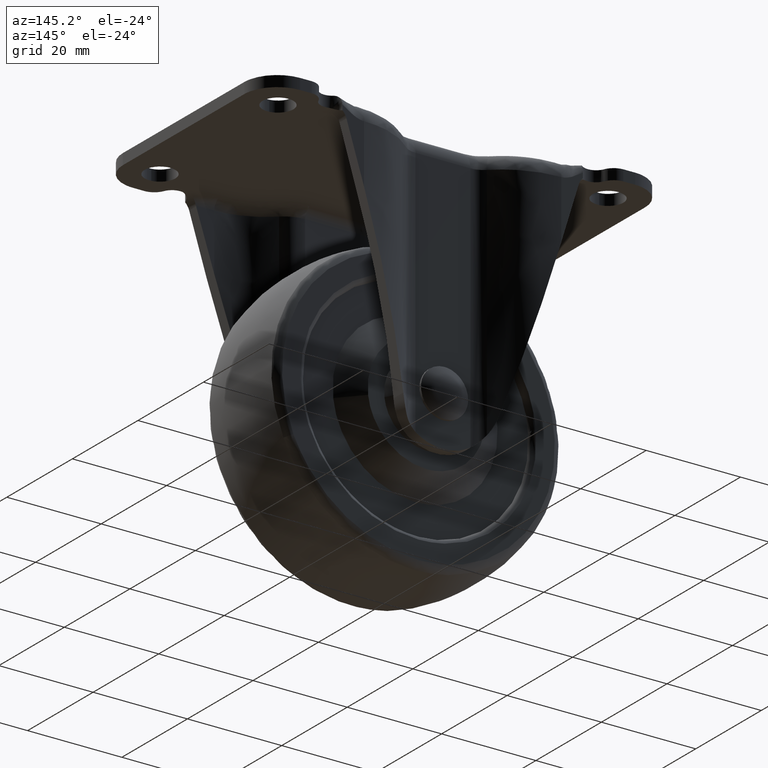
[diagram: clean part render]
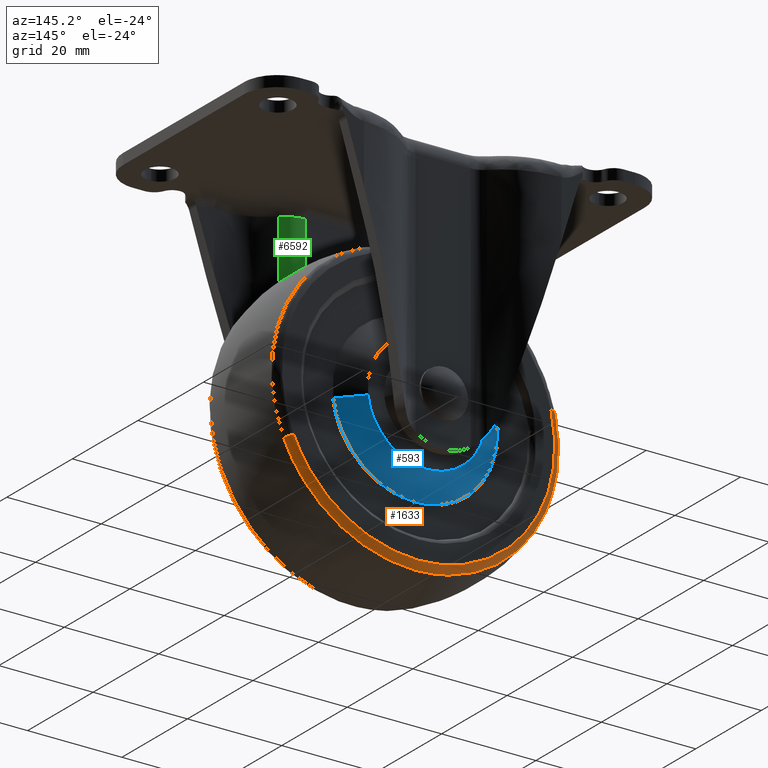
[diagram: same view with three faces highlighted in distinct colors, each labeled with its STEP entity id]
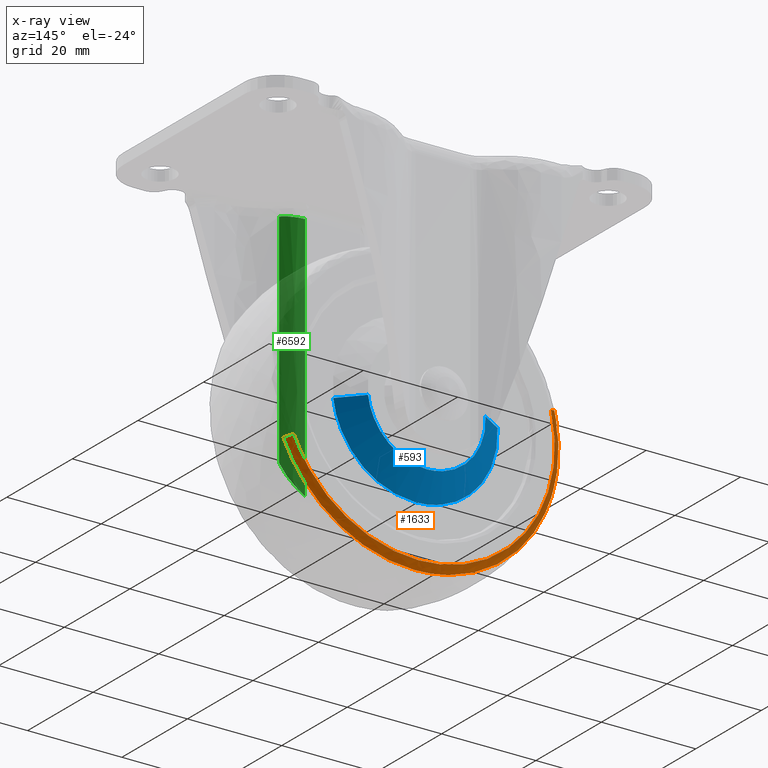
[diagram: x-ray of the same camera — body ghosted, the three highlighted faces saturated]
A machine part, auxiliary view with three faces highlighted in distinct colors.
The next image is the same camera in x-ray (body ghosted, the three faces saturated) — at least one of them is partly hidden behind the body in this view.
Their STEP definitions:

[orange] entity #1633 — the highlighted face is a freeform B-spline surface patch.
#1434=CARTESIAN_POINT('',(27.821786495395099,9.350641132517076,-60.731291223658992));
#1435=VERTEX_POINT('',#1434);
#1453=CARTESIAN_POINT('',(26.486667035341458,10.500000000000000,-60.144346861437498));
#1454=VERTEX_POINT('',#1453);
#1455=CARTESIAN_POINT('',(26.486667035341465,10.500000000000000,-60.144346861437505));
#1456=CARTESIAN_POINT('',(27.568819736317195,10.499999853619748,-60.620086760626585));
#1457=CARTESIAN_POINT('',(27.821786495395099,9.350641132517076,-60.731291223658992));
#1465=(BOUNDED_CURVE()B_SPLINE_CURVE(2,(#1455,#1456,#1457),.UNSPECIFIED.,.F.,.U.)B_SPLINE_CURVE_WITH_KNOTS((3,3),(-1.700933489172601,-0.310020536345649),.UNSPECIFIED.)CURVE()GEOMETRIC_REPRESENTATION_ITEM()RATIONAL_B_SPLINE_CURVE((0.843155640649994,0.661110916411449,0.840310688046679))REPRESENTATION_ITEM(''));
#1466=EDGE_CURVE('',#1454,#1435,#1465,.T.);
#1485=CARTESIAN_POINT('',(-28.112487159007738,10.500000000000000,-41.657309717454510));
#1486=VERTEX_POINT('',#1485);
#1500=CARTESIAN_POINT('',(-29.529555800368630,9.350636644921124,-41.312389619682548));
#1501=VERTEX_POINT('',#1500);
#1502=CARTESIAN_POINT('',(-28.112487159007731,10.500000000000000,-41.657309717454510));
#1503=CARTESIAN_POINT('',(-29.261066559811550,10.499999969470792,-41.377740960064365));
#1504=CARTESIAN_POINT('',(-29.529555800368637,9.350636644921124,-41.312389619682556));
#1512=(BOUNDED_CURVE()B_SPLINE_CURVE(2,(#1502,#1503,#1504),.UNSPECIFIED.,.F.,.U.)B_SPLINE_CURVE_WITH_KNOTS((3,3),(-1.700933486638862,-0.310016928679868),.UNSPECIFIED.)CURVE()GEOMETRIC_REPRESENTATION_ITEM()RATIONAL_B_SPLINE_CURVE((0.898751555426234,0.704702681425861,0.895720004212117))REPRESENTATION_ITEM(''));
#1513=EDGE_CURVE('',#1486,#1501,#1512,.T.);
#1531=CARTESIAN_POINT('',(-28.023557420894637,10.497205051194399,-41.678955566635103));
#1532=CARTESIAN_POINT('',(-34.844601854259523,10.497205051194399,-69.702512987529730));
#1533=CARTESIAN_POINT('',(-6.821044433364895,10.497205051194399,-76.523557420894619));
#1534=CARTESIAN_POINT('',(16.671951969328994,10.497205051194401,-82.241845428689643));
#1535=CARTESIAN_POINT('',(26.402880342739817,10.497205051194399,-60.107511675250649));
#1536=CARTESIAN_POINT('',(-29.321731625506334,10.578881182387196,-41.362974843741519));
#1537=CARTESIAN_POINT('',(-36.458756781764833,10.578881182387198,-70.684706469247857));
#1538=CARTESIAN_POINT('',(-7.137025156258494,10.578881182387196,-77.821731625506317));
#1539=CARTESIAN_POINT('',(17.444269975285334,10.578881182387198,-83.804915837404423));
#1540=CARTESIAN_POINT('',(27.625977670234654,10.578881182387198,-60.645222573628750));
#1541=CARTESIAN_POINT('',(-29.547757369776377,9.260679102095006,-41.307959285880862));
#1542=CARTESIAN_POINT('',(-36.739798083895515,9.260679102095006,-70.855716655657247));
#1543=CARTESIAN_POINT('',(-7.192040714119137,9.260679102095006,-78.047757369776377));
#1544=CARTESIAN_POINT('',(17.578738640191247,9.260679102095002,-84.077062789039402));
#1545=CARTESIAN_POINT('',(27.838931742792585,9.260679102095004,-60.738843680546658));
#1553=(BOUNDED_SURFACE()B_SPLINE_SURFACE(2,2,((#1531,#1536,#1541),(#1532,#1537,#1542),(#1533,#1538,#1543),(#1534,#1539,#1544),(#1535,#1540,#1545)),.UNSPECIFIED.,.F.,.F.,.U.)B_SPLINE_SURFACE_WITH_KNOTS((3,2,3),(3,3),(0.0,50.385681840820432,94.725081860742392),(0.0,2.287881667218255),.UNSPECIFIED.)GEOMETRIC_REPRESENTATION_ITEM()RATIONAL_B_SPLINE_SURFACE(((0.919098656736978,0.684507382652252,0.915763510976889),(0.649900892758164,0.484019812045662,0.647542588574960),(0.919098656736978,0.684507382652252,0.915763510976889),(0.682204624435622,0.508078320518453,0.679729099263191),(0.862244088984652,0.642164407740140,0.859115252165601)))REPRESENTATION_ITEM('')SURFACE());
#1554=CARTESIAN_POINT('',(0.0,9.350649350649350,-78.891713214015155));
#1555=VERTEX_POINT('',#1554);
#1556=CARTESIAN_POINT('',(0.0,9.350649350649350,-78.891713214015155));
#1557=CARTESIAN_POINT('',(19.837919391635250,9.350648334373176,-78.891713522198032));
#1558=CARTESIAN_POINT('',(27.821786495395095,9.350641132517076,-60.731291223658985));
#1566=(BOUNDED_CURVE()B_SPLINE_CURVE(2,(#1556,#1557,#1558),.UNSPECIFIED.,.F.,.U.)B_SPLINE_CURVE_WITH_KNOTS((3,3),(0.0,0.181662073465430),.UNSPECIFIED.)CURVE()GEOMETRIC_REPRESENTATION_ITEM()RATIONAL_B_SPLINE_CURVE((1.0,0.787169642265538,0.883644917190528))REPRESENTATION_ITEM(''));
#1567=EDGE_CURVE('',#1555,#1435,#1566,.T.);
#1568=ORIENTED_EDGE('',*,*,#1567,.F.);
#1569=CARTESIAN_POINT('',(-30.188446843240161,9.350637235361571,-44.990856752918788));
#1570=VERTEX_POINT('',#1569);
#1571=CARTESIAN_POINT('',(-30.188446843240154,9.350637235361571,-44.990856752918788));
#1572=CARTESIAN_POINT('',(-30.391716032755308,9.350637547828789,-46.739540968317385));
#1573=CARTESIAN_POINT('',(-30.391715948955380,9.350637898721542,-48.499999682087079));
#1574=CARTESIAN_POINT('',(-30.391714502273711,9.350643956365431,-78.891713064266327));
#1575=CARTESIAN_POINT('',(0.0,9.350649350649350,-78.891713214015155));
#1583=(BOUNDED_CURVE()B_SPLINE_CURVE(2,(#1571,#1572,#1573,#1574,#1575),.UNSPECIFIED.,.F.,.U.)B_SPLINE_CURVE_WITH_KNOTS((3,2,3),(0.730000071909690,0.750000000000000,1.0),.UNSPECIFIED.)CURVE()GEOMETRIC_REPRESENTATION_ITEM()RATIONAL_B_SPLINE_CURVE((0.956886259726412,0.976568626742366,1.0,0.707106781186548,1.0))REPRESENTATION_ITEM(''));
#1584=EDGE_CURVE('',#1570,#1555,#1583,.T.);
#1585=ORIENTED_EDGE('',*,*,#1584,.F.);
#1586=CARTESIAN_POINT('',(-29.529555800368641,9.350636644921124,-41.312389619682556));
#1587=CARTESIAN_POINT('',(-29.972293050377896,9.350636938335581,-43.131330262070236));
#1588=CARTESIAN_POINT('',(-30.188446843240154,9.350637235361571,-44.990856752918788));
#1596=(BOUNDED_CURVE()B_SPLINE_CURVE(2,(#1586,#1587,#1588),.UNSPECIFIED.,.F.,.U.)B_SPLINE_CURVE_WITH_KNOTS((3,3),(0.709598322414665,0.730000071909690),.UNSPECIFIED.)CURVE()GEOMETRIC_REPRESENTATION_ITEM()RATIONAL_B_SPLINE_CURVE((0.920631806394784,0.936808451470530,0.956886259726412))REPRESENTATION_ITEM(''));
#1597=EDGE_CURVE('',#1501,#1570,#1596,.T.);
#1598=ORIENTED_EDGE('',*,*,#1597,.F.);
#1599=ORIENTED_EDGE('',*,*,#1513,.F.);
#1600=CARTESIAN_POINT('',(0.0,10.500000000000000,-77.433273999999898));
#1601=VERTEX_POINT('',#1600);
#1602=CARTESIAN_POINT('',(-28.112487159007731,10.500000000000000,-41.657309717454510));
#1603=CARTESIAN_POINT('',(-28.933273999999898,10.500000000000000,-45.029427799552693));
#1604=CARTESIAN_POINT('',(-28.933273999999901,10.500000000000000,-48.500000000000000));
#1605=CARTESIAN_POINT('',(-28.933273999999905,10.500000000000002,-77.433273999999898));
#1606=CARTESIAN_POINT('',(0.0,10.500000000000000,-77.433273999999898));
#1614=(BOUNDED_CURVE()B_SPLINE_CURVE(2,(#1602,#1603,#1604,#1605,#1606),.UNSPECIFIED.,.F.,.U.)B_SPLINE_CURVE_WITH_KNOTS((3,2,3),(0.709598322306346,0.750000000000000,1.0),.UNSPECIFIED.)CURVE()GEOMETRIC_REPRESENTATION_ITEM()RATIONAL_B_SPLINE_CURVE((0.920631806223011,0.952666490299368,1.0,0.707106781186548,1.0))REPRESENTATION_ITEM(''));
#1615=EDGE_CURVE('',#1486,#1601,#1614,.T.);
#1616=ORIENTED_EDGE('',*,*,#1615,.T.);
#1617=CARTESIAN_POINT('',(0.0,10.500000000000000,-77.433273999999898));
#1618=CARTESIAN_POINT('',(18.885927227229995,10.499999999999998,-77.433273999999898));
#1619=CARTESIAN_POINT('',(26.486667035341465,10.500000000000000,-60.144346861437512));
#1627=(BOUNDED_CURVE()B_SPLINE_CURVE(2,(#1617,#1618,#1619),.UNSPECIFIED.,.F.,.U.)B_SPLINE_CURVE_WITH_KNOTS((3,3),(0.0,0.181662010434907),.UNSPECIFIED.)CURVE()GEOMETRIC_REPRESENTATION_ITEM()RATIONAL_B_SPLINE_CURVE((1.0,0.787169716110389,0.883644850243327))REPRESENTATION_ITEM(''));
#1628=EDGE_CURVE('',#1601,#1454,#1627,.T.);
#1629=ORIENTED_EDGE('',*,*,#1628,.T.);
#1630=ORIENTED_EDGE('',*,*,#1466,.T.);
#1631=EDGE_LOOP('',(#1568,#1585,#1598,#1599,#1616,#1629,#1630));
#1632=FACE_OUTER_BOUND('',#1631,.T.);
#1633=ADVANCED_FACE('',(#1632),#1553,.T.);

[blue] entity #593 — the highlighted face is a freeform B-spline surface patch.
#430=CARTESIAN_POINT('',(17.377666711366022,9.499999999990079,-50.565599106597212));
#431=VERTEX_POINT('',#430);
#449=CARTESIAN_POINT('',(12.414090719669581,12.999999999968921,-49.975602860272659));
#450=VERTEX_POINT('',#449);
#451=CARTESIAN_POINT('',(12.414090719669581,12.999999999968921,-49.975602860272659));
#452=CARTESIAN_POINT('',(17.377666711366022,9.499999999990079,-50.565599106597212));
#453=QUASI_UNIFORM_CURVE('',1,(#451,#452),.UNSPECIFIED.,.F.,.U.);
#454=EDGE_CURVE('',#450,#431,#453,.T.);
#473=CARTESIAN_POINT('',(-12.478164216045361,12.999999999998940,-47.736802781868001));
#474=VERTEX_POINT('',#473);
#488=CARTESIAN_POINT('',(-17.467358972390901,9.499999999989861,-47.431650558038157));
#489=VERTEX_POINT('',#488);
#490=CARTESIAN_POINT('',(-12.478164216045361,12.999999999998940,-47.736802781868001));
#491=CARTESIAN_POINT('',(-17.467358972390901,9.499999999989861,-47.431650558038157));
#492=QUASI_UNIFORM_CURVE('',1,(#490,#491),.UNSPECIFIED.,.F.,.U.);
#493=EDGE_CURVE('',#474,#489,#492,.T.);
#511=CARTESIAN_POINT('',(-12.353434347136041,13.087500000000000,-47.744431587472171));
#512=CARTESIAN_POINT('',(-13.109002759663870,13.087500000000002,-60.097865934608208));
#513=CARTESIAN_POINT('',(-0.755568412527829,13.087500000000000,-60.853434347136037));
#514=CARTESIAN_POINT('',(10.910439807778491,13.087500000000002,-61.566957976587055));
#515=CARTESIAN_POINT('',(12.290001319871291,13.087500000000009,-49.960852953781540));
#516=CARTESIAN_POINT('',(-17.595207088013730,9.410312499999998,-47.423831032406703));
#517=CARTESIAN_POINT('',(-18.671376055607038,9.410312499999998,-65.019038120420433));
#518=CARTESIAN_POINT('',(-1.076168967593296,9.410312499999998,-66.095207088013737));
#519=CARTESIAN_POINT('',(15.539925371739002,9.410312499999998,-67.111490954474931));
#520=CARTESIAN_POINT('',(17.504858346151391,9.410312500000000,-50.580717760311060));
#528=(BOUNDED_SURFACE()B_SPLINE_SURFACE(2,1,((#511,#516),(#512,#517),(#513,#518),(#514,#519),(#515,#520)),.UNSPECIFIED.,.F.,.F.,.U.)B_SPLINE_SURFACE_WITH_KNOTS((3,2,3),(2,2),(0.0,29.207170895721521,57.246054955614170),(0.0,6.410980743464529),.UNSPECIFIED.)GEOMETRIC_REPRESENTATION_ITEM()RATIONAL_B_SPLINE_SURFACE(((1.0,1.0),(0.707106781186548,0.707106781186548),(1.0,1.0),(0.718822509939086,0.718822509939086),(0.977505800795127,0.977505800795127)))REPRESENTATION_ITEM('')SURFACE());
#529=CARTESIAN_POINT('',(0.0,9.500000000000000,-66.0));
#530=VERTEX_POINT('',#529);
#531=CARTESIAN_POINT('',(0.0,9.500000000000000,-66.0));
#532=CARTESIAN_POINT('',(15.543054203964683,9.500000000000002,-66.0));
#533=CARTESIAN_POINT('',(17.377666711366025,9.499999999990079,-50.565599106597212));
#541=(BOUNDED_CURVE()B_SPLINE_CURVE(2,(#531,#532,#533),.UNSPECIFIED.,.F.,.U.)B_SPLINE_CURVE_WITH_KNOTS((3,3),(0.0,0.229562473513655),.UNSPECIFIED.)CURVE()GEOMETRIC_REPRESENTATION_ITEM()RATIONAL_B_SPLINE_CURVE((1.0,0.731050832855231,0.956026754183986))REPRESENTATION_ITEM(''));
#542=EDGE_CURVE('',#530,#431,#541,.T.);
#543=ORIENTED_EDGE('',*,*,#542,.F.);
#544=CARTESIAN_POINT('',(-17.467358972390898,9.499999999989861,-47.431650558038172));
#545=CARTESIAN_POINT('',(-17.500000000000000,9.499999999999998,-47.965326642173451));
#546=CARTESIAN_POINT('',(-17.500000000000000,9.500000000000000,-48.500000000000000));
#547=CARTESIAN_POINT('',(-17.499999999999996,9.500000000000000,-66.0));
#548=CARTESIAN_POINT('',(0.0,9.500000000000000,-66.0));
#556=(BOUNDED_CURVE()B_SPLINE_CURVE(2,(#544,#545,#546,#547,#548),.UNSPECIFIED.,.F.,.U.)B_SPLINE_CURVE_WITH_KNOTS((3,2,3),(0.739332962239974,0.750000000000000,1.0),.UNSPECIFIED.)CURVE()GEOMETRIC_REPRESENTATION_ITEM()RATIONAL_B_SPLINE_CURVE((0.976072041668927,0.987502787901045,1.0,0.707106781186548,1.0))REPRESENTATION_ITEM(''));
#557=EDGE_CURVE('',#489,#530,#556,.T.);
#558=ORIENTED_EDGE('',*,*,#557,.F.);
#559=ORIENTED_EDGE('',*,*,#493,.F.);
#560=CARTESIAN_POINT('',(0.0,13.0,-61.001481999999903));
#561=VERTEX_POINT('',#560);
#562=CARTESIAN_POINT('',(-12.478164216045355,12.999999999998945,-47.736802781867993));
#563=CARTESIAN_POINT('',(-12.501481999999900,13.000000000000004,-48.118045179561797));
#564=CARTESIAN_POINT('',(-12.501481999999900,13.0,-48.500000000000000));
#565=CARTESIAN_POINT('',(-12.501481999999902,13.000000000000002,-61.001481999999896));
#566=CARTESIAN_POINT('',(0.0,13.0,-61.001481999999903));
#574=(BOUNDED_CURVE()B_SPLINE_CURVE(2,(#562,#563,#564,#565,#566),.UNSPECIFIED.,.F.,.U.)B_SPLINE_CURVE_WITH_KNOTS((3,2,3),(0.739332962241675,0.750000000000000,1.0),.UNSPECIFIED.)CURVE()GEOMETRIC_REPRESENTATION_ITEM()RATIONAL_B_SPLINE_CURVE((0.976072041672573,0.987502787903038,1.0,0.707106781186548,1.0))REPRESENTATION_ITEM(''));
#575=EDGE_CURVE('',#474,#561,#574,.T.);
#576=ORIENTED_EDGE('',*,*,#575,.T.);
#577=CARTESIAN_POINT('',(0.0,13.0,-61.001481999999903));
#578=CARTESIAN_POINT('',(11.103497848459060,13.000000000000002,-61.001481999999910));
#579=CARTESIAN_POINT('',(12.414090719669581,12.999999999968917,-49.975602860272659));
#587=(BOUNDED_CURVE()B_SPLINE_CURVE(2,(#577,#578,#579),.UNSPECIFIED.,.F.,.U.)B_SPLINE_CURVE_WITH_KNOTS((3,3),(0.0,0.229562473506872),.UNSPECIFIED.)CURVE()GEOMETRIC_REPRESENTATION_ITEM()RATIONAL_B_SPLINE_CURVE((1.0,0.731050832863178,0.956026754170691))REPRESENTATION_ITEM(''));
#588=EDGE_CURVE('',#561,#450,#587,.T.);
#589=ORIENTED_EDGE('',*,*,#588,.T.);
#590=ORIENTED_EDGE('',*,*,#454,.T.);
#591=EDGE_LOOP('',(#543,#558,#559,#576,#589,#590));
#592=FACE_OUTER_BOUND('',#591,.T.);
#593=ADVANCED_FACE('',(#592),#528,.T.);

[green] entity #6592 — the highlighted face is a freeform B-spline surface patch.
#4426=CARTESIAN_POINT('',(10.140734260395540,-17.418181860915752,-4.300000000000080));
#4427=VERTEX_POINT('',#4426);
#4492=CARTESIAN_POINT('',(5.816738999999900,-15.699999999999999,-4.300000000000080));
#4493=VERTEX_POINT('',#4492);
#4523=CARTESIAN_POINT('',(5.816738999999900,-15.699999999999999,-4.300000000000080));
#4524=CARTESIAN_POINT('',(8.320104824355898,-15.699999999999998,-4.300000000000080));
#4525=CARTESIAN_POINT('',(10.140734260395540,-17.418181860915752,-4.300000000000080));
#4533=(BOUNDED_CURVE()B_SPLINE_CURVE(2,(#4523,#4524,#4525),.UNSPECIFIED.,.F.,.U.)CURVE()GEOMETRIC_REPRESENTATION_ITEM()QUASI_UNIFORM_CURVE()RATIONAL_B_SPLINE_CURVE((1.0,0.929320394015014,1.0))REPRESENTATION_ITEM(''));
#4534=EDGE_CURVE('',#4493,#4427,#4533,.T.);
#5969=CARTESIAN_POINT('',(10.030686999999901,-17.316770104586649,-51.604080000000003));
#5970=VERTEX_POINT('',#5969);
#5976=CARTESIAN_POINT('',(10.140734260395540,-17.418181860915752,-51.248467473763299));
#5977=VERTEX_POINT('',#5976);
#5978=CARTESIAN_POINT('',(10.030686999999901,-17.316770104586649,-51.604080000000003));
#5979=CARTESIAN_POINT('',(10.086312893376260,-17.366822019050588,-51.424327551855349));
#5980=CARTESIAN_POINT('',(10.140734260395540,-17.418181860915752,-51.248467473763299));
#5988=(BOUNDED_CURVE()B_SPLINE_CURVE(2,(#5978,#5979,#5980),.UNSPECIFIED.,.F.,.U.)CURVE()GEOMETRIC_REPRESENTATION_ITEM()QUASI_UNIFORM_CURVE()RATIONAL_B_SPLINE_CURVE((1.0,0.999929467854242,1.0))REPRESENTATION_ITEM(''));
#5989=EDGE_CURVE('',#5970,#5977,#5988,.T.);
#6059=CARTESIAN_POINT('',(5.816738999999900,-15.699999999999999,-57.241599046691597));
#6060=VERTEX_POINT('',#6059);
#6074=CARTESIAN_POINT('',(10.030686999999901,-17.316770104586649,-51.604080000000003));
#6075=CARTESIAN_POINT('',(9.942258369977655,-17.237202443603120,-51.889832994416217));
#6076=CARTESIAN_POINT('',(9.842706821414218,-17.152171673821488,-52.168462583132573));
#6077=CARTESIAN_POINT('',(9.621925377214057,-16.977011545521322,-52.713673969312218));
#6078=CARTESIAN_POINT('',(9.500690718883682,-16.886866574338551,-52.980248325752967));
#6079=CARTESIAN_POINT('',(9.236217404176147,-16.706343311183140,-53.502803040203403));
#6080=CARTESIAN_POINT('',(9.092979858498362,-16.615948537051530,-53.758778476749733));
#6081=CARTESIAN_POINT('',(8.860762426226742,-16.483491823605689,-54.135481094253663));
#6082=CARTESIAN_POINT('',(8.780389830685333,-16.439825991265941,-54.259933059679142));
#6083=CARTESIAN_POINT('',(8.613898809577977,-16.354235370359010,-54.506065454360773));
#6084=CARTESIAN_POINT('',(8.528149751367357,-16.312498031973771,-54.627208219575891));
#6085=CARTESIAN_POINT('',(8.263322480484048,-16.191218985987259,-54.985027143742393));
#6086=CARTESIAN_POINT('',(8.076685479129377,-16.115598743013550,-55.216109567242498));
#6087=CARTESIAN_POINT('',(7.682382206435504,-15.978960914590070,-55.663796528842809));
#6088=CARTESIAN_POINT('',(7.474722190360817,-15.917921196426230,-55.880400149520533));
#6089=CARTESIAN_POINT('',(7.146255170620741,-15.840857652224789,-56.194412553233441));
#6090=CARTESIAN_POINT('',(7.033930235340600,-15.817592616708501,-56.297264111383072));
#6091=CARTESIAN_POINT('',(6.803313779246246,-15.776625853982219,-56.499276486931322));
#6092=CARTESIAN_POINT('',(6.685015143558181,-15.758945771483500,-56.598413936540332));
#6093=CARTESIAN_POINT('',(6.324332801984221,-15.715813981810291,-56.887356214250772));
#6094=CARTESIAN_POINT('',(6.075091080297352,-15.699999999999999,-57.069689209220243));
#6095=CARTESIAN_POINT('',(5.816738999999900,-15.699999999999999,-57.241599046691597));
#6096=B_SPLINE_CURVE_WITH_KNOTS('',3,(#6074,#6075,#6076,#6077,#6078,#6079,#6080,#6081,#6082,#6083,#6084,#6085,#6086,#6087,#6088,#6089,#6090,#6091,#6092,#6093,#6094,#6095),.UNSPECIFIED.,.F.,.U.,(4,2,2,2,2,2,2,2,2,2,4),(0.0,0.125000000000000,0.250000000000000,0.375000000000000,0.437500000000000,0.500000000000000,0.625000000000001,0.750000000000001,0.812500000000001,0.875000000000000,1.0),.UNSPECIFIED.);
#6097=EDGE_CURVE('',#5970,#6060,#6096,.T.);
#6552=CARTESIAN_POINT('',(5.816738999999900,-15.699999999999999,-57.241599046691597));
#6553=CARTESIAN_POINT('',(5.816738999999900,-15.699999999999999,-4.300000000000080));
#6554=QUASI_UNIFORM_CURVE('',1,(#6552,#6553),.UNSPECIFIED.,.F.,.U.);
#6555=EDGE_CURVE('',#6060,#4493,#6554,.T.);
#6567=CARTESIAN_POINT('',(5.586169470697735,-15.704220644578040,-58.565139022858894));
#6568=CARTESIAN_POINT('',(5.586169470697735,-15.704220644578040,-2.943371524428599));
#6569=CARTESIAN_POINT('',(8.359906866152810,-15.602638411533757,-58.565139022858887));
#6570=CARTESIAN_POINT('',(8.359906866152810,-15.602638411533757,-2.943371524428599));
#6571=CARTESIAN_POINT('',(10.306854651762904,-17.580852861264653,-58.565139022858894));
#6572=CARTESIAN_POINT('',(10.306854651762904,-17.580852861264653,-2.943371524428598));
#6580=(BOUNDED_SURFACE()B_SPLINE_SURFACE(1,2,((#6567,#6569,#6571),(#6568,#6570,#6572)),.UNSPECIFIED.,.F.,.F.,.U.)B_SPLINE_SURFACE_WITH_KNOTS((2,2),(3,3),(0.0,55.621767498430302),(0.0,5.305141195886834),.UNSPECIFIED.)GEOMETRIC_REPRESENTATION_ITEM()RATIONAL_B_SPLINE_SURFACE(((0.999764883158666,0.911008253405971,0.991261966189297),(0.999764883158666,0.911008253405971,0.991261966189297)))REPRESENTATION_ITEM('')SURFACE());
#6581=ORIENTED_EDGE('',*,*,#6555,.T.);
#6582=ORIENTED_EDGE('',*,*,#4534,.T.);
#6583=CARTESIAN_POINT('',(10.140734260395540,-17.418181860915752,-51.248467473763299));
#6584=CARTESIAN_POINT('',(10.140734260395540,-17.418181860915752,-4.300000000000080));
#6585=QUASI_UNIFORM_CURVE('',1,(#6583,#6584),.UNSPECIFIED.,.F.,.U.);
#6586=EDGE_CURVE('',#5977,#4427,#6585,.T.);
#6587=ORIENTED_EDGE('',*,*,#6586,.F.);
#6588=ORIENTED_EDGE('',*,*,#5989,.F.);
#6589=ORIENTED_EDGE('',*,*,#6097,.T.);
#6590=EDGE_LOOP('',(#6581,#6582,#6587,#6588,#6589));
#6591=FACE_OUTER_BOUND('',#6590,.T.);
#6592=ADVANCED_FACE('',(#6591),#6580,.T.);